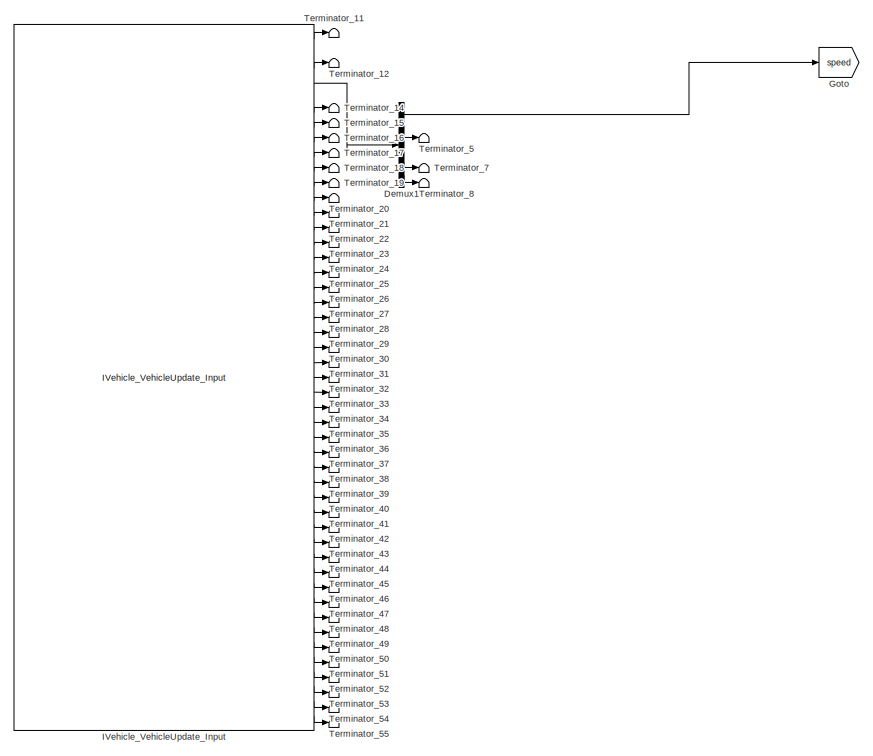
[diagram: root canvas - part 1/2, left side, full height]
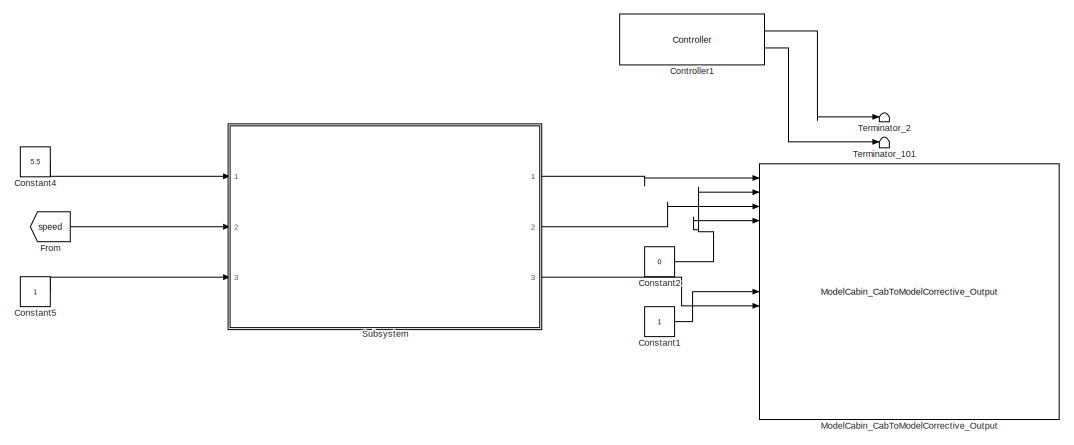
[diagram: root canvas - part 2/2, middle right region]
MODEL slx_c6527d155f93
KIND model
CONFIG AbsTol = auto
CONFIG EnableMultiTasking = off
CONFIG FixedStep = 0.01
CONFIG MaxStep = auto
CONFIG MinStep = auto
CONFIG RelTol = 1e-3
CONFIG SampleTimeConstraint = Unconstrained
CONFIG Solver = FixedStepAuto
CONFIG SolverName = FixedStepAuto
CONFIG StartTime = 0.0
CONFIG StopTime = inf
BLOCK [Constant] Constant1
BLOCK [Constant] Constant2
  Value = 0
BLOCK [Constant] Constant4
  Value = 5.5
BLOCK [Constant] Constant5
BLOCK [Reference] Controller1  REF=SCANeR_API/Controller
  Ports = [0, 2]
  Priority = 1
  SourceBlock = SCANeR_API/Controller
BLOCK [Demux] Demux1
  DisplayOption = bar
  Outputs = 6
  Ports = [1, 6]
BLOCK [From] From
  GotoTag = speed
BLOCK [Goto] Goto
  GotoTag = speed
BLOCK [Reference] IVehicle_VehicleUpdate_Input  REF=SCANeR_API/Network inputs/IVehicle/IVehicle_VehicleUpdate_Input
  Ports = [0, 47]
  Priority = 2
  SourceBlock = SCANeR_API/Network inputs/IVehicle/IVehicle_VehicleUpdate_Input
  SourceType = IVehicle_VehicleUpdate_Input
BLOCK [Reference] ModelCabin_CabToModelCorrective_Output  REF=SCANeR_API/SHM outputs/ModelCabin/ModelCabin_CabToModelCorrective_Output
  Ports = [17]
  Priority = 2
  SourceBlock = SCANeR_API/SHM outputs/ModelCabin/ModelCabin_CabToModelCorrective_Output
  SourceType = ModelCabin_CabToModelCorrective_Output
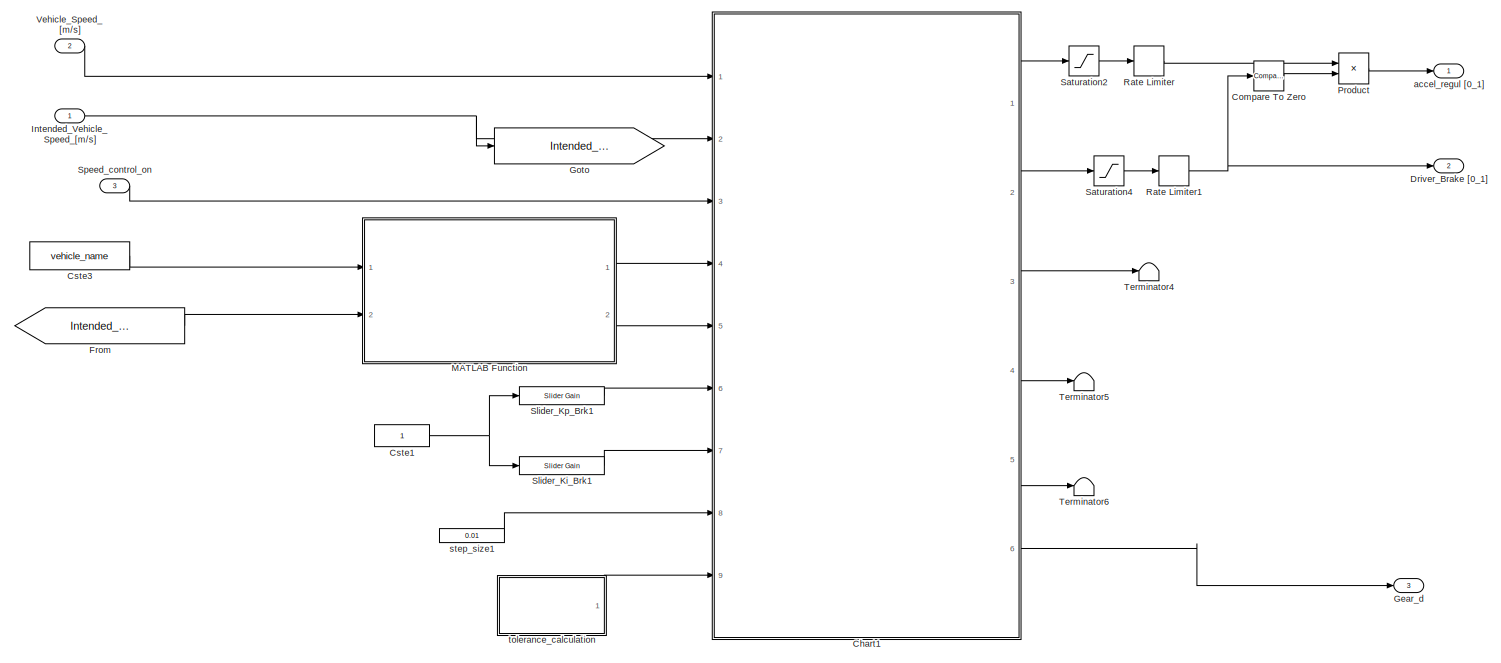
[diagram: Subsystem - part 1/2, most of the canvas]
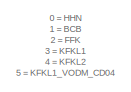
[diagram: Subsystem - part 2/2, bottom left region]
BLOCK [SubSystem] Subsystem
  Ports = [3, 3]
  RequestExecContextInheritance = off
  Variant = off
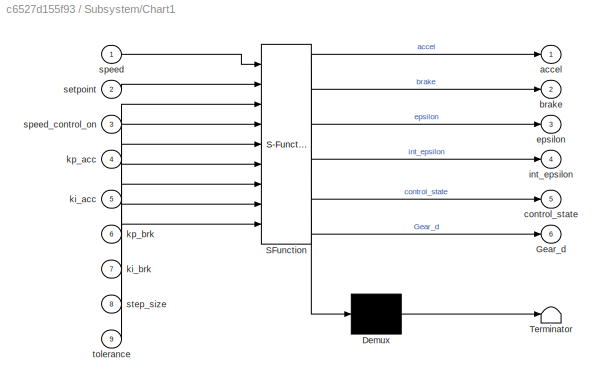
BLOCK [SubSystem] Subsystem/Chart1
  ErrorFcn = Stateflow.Translate.translate
  PermitHierarchicalResolution = ExplicitOnly
  Ports = [9, 6]
  RequestExecContextInheritance = off
  SFBlockType = Chart
  SystemSampleTime = 0.01
  TreatAsAtomicUnit = on
  Variant = off
BLOCK [Demux] Subsystem/Chart1/ Demux 
  Outputs = 1
  Ports = [1, 1]
BLOCK [S-Function] Subsystem/Chart1/ SFunction 
  EnableBusSupport = on
  FunctionName = sf_sfun
  PortCounts = [9 7]
  Ports = [9, 7]
  SFcnIsStateOwnerBlock = off
  SFunctionDeploymentMode = off
  Tag = Stateflow S-Function longi 5
BLOCK [Terminator] Subsystem/Chart1/ Terminator 
BLOCK [Outport] Subsystem/Chart1/Gear_d
  IconDisplay = Port number
  Port = 6
BLOCK [Outport] Subsystem/Chart1/accel
  IconDisplay = Port number
BLOCK [Outport] Subsystem/Chart1/brake
  IconDisplay = Port number
  Port = 2
BLOCK [Outport] Subsystem/Chart1/control_state
  IconDisplay = Port number
  Port = 5
BLOCK [Outport] Subsystem/Chart1/epsilon
  IconDisplay = Port number
  Port = 3
BLOCK [Outport] Subsystem/Chart1/int_epsilon
  IconDisplay = Port number
  Port = 4
BLOCK [Inport] Subsystem/Chart1/ki_acc
  IconDisplay = Port number
  Port = 5
BLOCK [Inport] Subsystem/Chart1/ki_brk
  IconDisplay = Port number
  Port = 7
BLOCK [Inport] Subsystem/Chart1/kp_acc
  IconDisplay = Port number
  Port = 4
BLOCK [Inport] Subsystem/Chart1/kp_brk
  IconDisplay = Port number
  Port = 6
BLOCK [Inport] Subsystem/Chart1/setpoint
  IconDisplay = Port number
  Port = 2
BLOCK [Inport] Subsystem/Chart1/speed
  IconDisplay = Port number
BLOCK [Inport] Subsystem/Chart1/speed_control_on
  IconDisplay = Port number
  Port = 3
BLOCK [Inport] Subsystem/Chart1/step_size
  IconDisplay = Port number
  Port = 8
BLOCK [Inport] Subsystem/Chart1/tolerance
  IconDisplay = Port number
  Port = 9
BLOCK [Reference] Subsystem/Compare To Zero  REF=simulink/Logic and Bit
Operations/Compare
To Zero
  Ports = [1, 1]
  SourceBlock = simulink/Logic and Bit\nOperations/Compare\nTo Zero
  SourceType = Compare To Zero
BLOCK [Constant] Subsystem/Cste1
  SampleTime = 0.01
BLOCK [Constant] Subsystem/Cste3
  SampleTime = 0.01
  Value = vehicle_name
BLOCK [Outport] Subsystem/Driver_Brake [0_1]
  IconDisplay = Port number
  Port = 2
BLOCK [From] Subsystem/From
  GotoTag = Intended_Vehicle_Speed_kmph
BLOCK [Outport] Subsystem/Gear_d
  IconDisplay = Port number
  Port = 3
BLOCK [Goto] Subsystem/Goto
  GotoTag = Intended_Vehicle_Speed_kmph
BLOCK [Inport] Subsystem/Intended_Vehicle_Speed_[m//s]
  IconDisplay = Port number
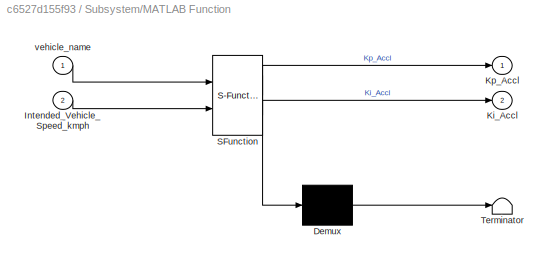
BLOCK [SubSystem] Subsystem/MATLAB Function
  ErrorFcn = Stateflow.Translate.translate
  PermitHierarchicalResolution = ExplicitOnly
  Ports = [2, 2]
  RequestExecContextInheritance = off
  SFBlockType = MATLAB Function
  TreatAsAtomicUnit = on
  Variant = off
BLOCK [Demux] Subsystem/MATLAB Function/ Demux 
  Outputs = 1
  Ports = [1, 1]
BLOCK [S-Function] Subsystem/MATLAB Function/ SFunction 
  EnableBusSupport = on
  FunctionName = sf_sfun
  PortCounts = [2 3]
  Ports = [2, 3]
  SFcnIsStateOwnerBlock = off
  SFunctionDeploymentMode = off
  Tag = Stateflow S-Function longi 6
BLOCK [Terminator] Subsystem/MATLAB Function/ Terminator 
BLOCK [Inport] Subsystem/MATLAB Function/Intended_Vehicle_Speed_kmph
  IconDisplay = Port number
  Port = 2
BLOCK [Outport] Subsystem/MATLAB Function/Ki_Accl
  IconDisplay = Port number
  Port = 2
BLOCK [Outport] Subsystem/MATLAB Function/Kp_Accl
  IconDisplay = Port number
BLOCK [Inport] Subsystem/MATLAB Function/vehicle_name
  IconDisplay = Port number
BLOCK [Product] Subsystem/Product
  InputSameDT = off
  OutDataTypeStr = Inherit: Inherit via internal rule
  Ports = [2, 1]
  RndMeth = Floor
  SaturateOnIntegerOverflow = off
BLOCK [RateLimiter] Subsystem/Rate Limiter
  RisingSlewLimit = 0.5
  SampleTimeMode = inherited
BLOCK [RateLimiter] Subsystem/Rate Limiter1
  RisingSlewLimit = 0.2
  SampleTimeMode = inherited
BLOCK [Saturate] Subsystem/Saturation2
  InputPortMap = u0
  LowerLimit = 0
  Ports = [1, 1]
  SampleTime = 0.01
  UpperLimit = 0.005
BLOCK [Saturate] Subsystem/Saturation4
  InputPortMap = u0
  LowerLimit = 0
  Ports = [1, 1]
  SampleTime = 0.01
  UpperLimit = 1
BLOCK [Reference] Subsystem/Slider_Ki_Brk1  REF=simulink/Math
Operations/Slider
Gain
  Ports = [1, 1]
  SourceBlock = simulink/Math\nOperations/Slider\nGain
  SourceType = Slider Gain
BLOCK [Reference] Subsystem/Slider_Kp_Brk1  REF=simulink/Math
Operations/Slider
Gain
  Ports = [1, 1]
  SourceBlock = simulink/Math\nOperations/Slider\nGain
  SourceType = Slider Gain
BLOCK [Inport] Subsystem/Speed_control_on
  IconDisplay = Port number
  Port = 3
BLOCK [Terminator] Subsystem/Terminator4
BLOCK [Terminator] Subsystem/Terminator5
BLOCK [Terminator] Subsystem/Terminator6
BLOCK [Inport] Subsystem/Vehicle_Speed_[m//s]
  IconDisplay = Port number
  Port = 2
BLOCK [Outport] Subsystem/accel_regul [0_1]
  IconDisplay = Port number
BLOCK [Constant] Subsystem/step_size1
  SampleTime = 0.01
  Value = 0.01
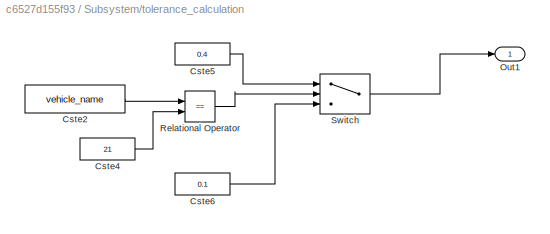
BLOCK [SubSystem] Subsystem/tolerance_calculation
  Ports = [0, 1]
  RequestExecContextInheritance = off
  Variant = off
BLOCK [Constant] Subsystem/tolerance_calculation/Cste2
  SampleTime = 0.01
  Value = vehicle_name
BLOCK [Constant] Subsystem/tolerance_calculation/Cste4
  SampleTime = 0.01
  Value = 21
BLOCK [Constant] Subsystem/tolerance_calculation/Cste5
  SampleTime = 0.01
  Value = 0.4
BLOCK [Constant] Subsystem/tolerance_calculation/Cste6
  SampleTime = 0.01
  Value = 0.1
BLOCK [Outport] Subsystem/tolerance_calculation/Out1
  IconDisplay = Port number
BLOCK [RelationalOperator] Subsystem/tolerance_calculation/Relational Operator
  InputSameDT = off
  Operator = ==
  OutDataTypeStr = boolean
  Ports = [2, 1]
  RndMeth = Simplest
BLOCK [Switch] Subsystem/tolerance_calculation/Switch
  Criteria = u2 > Threshold
  InputSameDT = off
  SaturateOnIntegerOverflow = off
  Threshold = 0.5
BLOCK [Terminator] Terminator_101
BLOCK [Terminator] Terminator_11
BLOCK [Terminator] Terminator_12
BLOCK [Terminator] Terminator_14
BLOCK [Terminator] Terminator_15
BLOCK [Terminator] Terminator_16
BLOCK [Terminator] Terminator_17
BLOCK [Terminator] Terminator_18
BLOCK [Terminator] Terminator_19
BLOCK [Terminator] Terminator_2
BLOCK [Terminator] Terminator_20
BLOCK [Terminator] Terminator_21
BLOCK [Terminator] Terminator_22
BLOCK [Terminator] Terminator_23
BLOCK [Terminator] Terminator_24
BLOCK [Terminator] Terminator_25
BLOCK [Terminator] Terminator_26
BLOCK [Terminator] Terminator_27
BLOCK [Terminator] Terminator_28
BLOCK [Terminator] Terminator_29
BLOCK [Terminator] Terminator_30
BLOCK [Terminator] Terminator_31
BLOCK [Terminator] Terminator_32
BLOCK [Terminator] Terminator_33
BLOCK [Terminator] Terminator_34
BLOCK [Terminator] Terminator_35
BLOCK [Terminator] Terminator_36
BLOCK [Terminator] Terminator_37
BLOCK [Terminator] Terminator_38
BLOCK [Terminator] Terminator_39
BLOCK [Terminator] Terminator_40
BLOCK [Terminator] Terminator_41
BLOCK [Terminator] Terminator_42
BLOCK [Terminator] Terminator_43
BLOCK [Terminator] Terminator_44
BLOCK [Terminator] Terminator_45
BLOCK [Terminator] Terminator_46
BLOCK [Terminator] Terminator_47
BLOCK [Terminator] Terminator_48
BLOCK [Terminator] Terminator_49
BLOCK [Terminator] Terminator_5
BLOCK [Terminator] Terminator_50
BLOCK [Terminator] Terminator_51
BLOCK [Terminator] Terminator_52
BLOCK [Terminator] Terminator_53
BLOCK [Terminator] Terminator_54
BLOCK [Terminator] Terminator_55
BLOCK [Terminator] Terminator_7
BLOCK [Terminator] Terminator_8
ANNOTATION Subsystem: 0 = HHN 1 = BCB 2 = FFK 3 = KFKL1 4 = KFKL2 5 = KFKL1_VODM_CD04 6= KFKL1_VODM_CD05 7 = KFKL1_VODM_CD06 8 = FFKL1_VODM_CD06 9 = FFKL1_MMAC_CD06 10 = FFKL2_MMAC_CD06 11 = KFKL2_MMAC_CD06 12 = XDD_35T_TRS_L2H2
LINE Constant1:1 -> ModelCabin_CabToModelCorrective_Output:9
NET Constant2:1 -> ModelCabin_CabToModelCorrective_Output:2, ModelCabin_CabToModelCorrective_Output:4
LINE Constant4:1 -> Subsystem:1
LINE Constant5:1 -> Subsystem:3
LINE Controller1:1 -> Terminator_2:1
LINE Controller1:2 -> Terminator_101:1
LINE Demux1:1 -> Goto:1
LINE Demux1:3 -> Terminator_5:1
LINE Demux1:5 -> Terminator_7:1
LINE Demux1:6 -> Terminator_8:1
LINE From:1 -> Subsystem:2
LINE IVehicle_VehicleUpdate_Input:1 -> Terminator_11:1
LINE IVehicle_VehicleUpdate_Input:10 -> Terminator_18:1
LINE IVehicle_VehicleUpdate_Input:11 -> Terminator_19:1
LINE IVehicle_VehicleUpdate_Input:12 -> Terminator_20:1
LINE IVehicle_VehicleUpdate_Input:13 -> Terminator_21:1
LINE IVehicle_VehicleUpdate_Input:14 -> Terminator_22:1
LINE IVehicle_VehicleUpdate_Input:15 -> Terminator_23:1
LINE IVehicle_VehicleUpdate_Input:16 -> Terminator_24:1
LINE IVehicle_VehicleUpdate_Input:17 -> Terminator_25:1
LINE IVehicle_VehicleUpdate_Input:18 -> Terminator_26:1
LINE IVehicle_VehicleUpdate_Input:19 -> Terminator_27:1
LINE IVehicle_VehicleUpdate_Input:20 -> Terminator_28:1
LINE IVehicle_VehicleUpdate_Input:21 -> Terminator_29:1
LINE IVehicle_VehicleUpdate_Input:22 -> Terminator_30:1
LINE IVehicle_VehicleUpdate_Input:23 -> Terminator_31:1
LINE IVehicle_VehicleUpdate_Input:24 -> Terminator_32:1
LINE IVehicle_VehicleUpdate_Input:25 -> Terminator_33:1
LINE IVehicle_VehicleUpdate_Input:26 -> Terminator_34:1
LINE IVehicle_VehicleUpdate_Input:27 -> Terminator_35:1
LINE IVehicle_VehicleUpdate_Input:28 -> Terminator_36:1
LINE IVehicle_VehicleUpdate_Input:29 -> Terminator_37:1
LINE IVehicle_VehicleUpdate_Input:3 -> Terminator_12:1
LINE IVehicle_VehicleUpdate_Input:30 -> Terminator_38:1
LINE IVehicle_VehicleUpdate_Input:31 -> Terminator_39:1
LINE IVehicle_VehicleUpdate_Input:32 -> Terminator_40:1
LINE IVehicle_VehicleUpdate_Input:33 -> Terminator_41:1
LINE IVehicle_VehicleUpdate_Input:34 -> Terminator_42:1
LINE IVehicle_VehicleUpdate_Input:35 -> Terminator_43:1
LINE IVehicle_VehicleUpdate_Input:36 -> Terminator_44:1
LINE IVehicle_VehicleUpdate_Input:37 -> Terminator_45:1
LINE IVehicle_VehicleUpdate_Input:38 -> Terminator_46:1
LINE IVehicle_VehicleUpdate_Input:39 -> Terminator_47:1
LINE IVehicle_VehicleUpdate_Input:4 -> Demux1:1
LINE IVehicle_VehicleUpdate_Input:40 -> Terminator_48:1
LINE IVehicle_VehicleUpdate_Input:41 -> Terminator_49:1
LINE IVehicle_VehicleUpdate_Input:42 -> Terminator_50:1
LINE IVehicle_VehicleUpdate_Input:43 -> Terminator_51:1
LINE IVehicle_VehicleUpdate_Input:44 -> Terminator_52:1
LINE IVehicle_VehicleUpdate_Input:45 -> Terminator_53:1
LINE IVehicle_VehicleUpdate_Input:46 -> Terminator_54:1
LINE IVehicle_VehicleUpdate_Input:47 -> Terminator_55:1
LINE IVehicle_VehicleUpdate_Input:6 -> Terminator_14:1
LINE IVehicle_VehicleUpdate_Input:7 -> Terminator_15:1
LINE IVehicle_VehicleUpdate_Input:8 -> Terminator_16:1
LINE IVehicle_VehicleUpdate_Input:9 -> Terminator_17:1
LINE Subsystem/Chart1:1 -> Subsystem/Saturation2:1
LINE Subsystem/Chart1:2 -> Subsystem/Saturation4:1
LINE Subsystem/Chart1:3 -> Subsystem/Terminator4:1
LINE Subsystem/Chart1:4 -> Subsystem/Terminator5:1
LINE Subsystem/Chart1:5 -> Subsystem/Terminator6:1
LINE Subsystem/Chart1:6 -> Subsystem/Gear_d:1
LINE Subsystem/Compare To Zero:1 -> Subsystem/Product:2
NET Subsystem/Cste1:1 -> Subsystem/Slider_Ki_Brk1:1, Subsystem/Slider_Kp_Brk1:1
LINE Subsystem/Cste3:1 -> Subsystem/MATLAB Function:1
LINE Subsystem/From:1 -> Subsystem/MATLAB Function:2
NET Subsystem/Intended_Vehicle_Speed_[m//s]:1 -> Subsystem/Chart1:2, Subsystem/Goto:1
LINE Subsystem/MATLAB Function:1 -> Subsystem/Chart1:4
LINE Subsystem/MATLAB Function:2 -> Subsystem/Chart1:5
LINE Subsystem/Product:1 -> Subsystem/accel_regul [0_1]:1
NET Subsystem/Rate Limiter1:1 -> Subsystem/Compare To Zero:1, Subsystem/Driver_Brake [0_1]:1
LINE Subsystem/Rate Limiter:1 -> Subsystem/Product:1
LINE Subsystem/Saturation2:1 -> Subsystem/Rate Limiter:1
LINE Subsystem/Saturation4:1 -> Subsystem/Rate Limiter1:1
LINE Subsystem/Slider_Ki_Brk1:1 -> Subsystem/Chart1:7
LINE Subsystem/Slider_Kp_Brk1:1 -> Subsystem/Chart1:6
LINE Subsystem/Speed_control_on:1 -> Subsystem/Chart1:3
LINE Subsystem/Vehicle_Speed_[m//s]:1 -> Subsystem/Chart1:1
LINE Subsystem/step_size1:1 -> Subsystem/Chart1:8
LINE Subsystem/tolerance_calculation/Cste2:1 -> Subsystem/tolerance_calculation/Relational Operator:1
LINE Subsystem/tolerance_calculation/Cste4:1 -> Subsystem/tolerance_calculation/Relational Operator:2
LINE Subsystem/tolerance_calculation/Cste5:1 -> Subsystem/tolerance_calculation/Switch:1
LINE Subsystem/tolerance_calculation/Cste6:1 -> Subsystem/tolerance_calculation/Switch:3
LINE Subsystem/tolerance_calculation/Relational Operator:1 -> Subsystem/tolerance_calculation/Switch:2
LINE Subsystem/tolerance_calculation/Switch:1 -> Subsystem/tolerance_calculation/Out1:1
LINE Subsystem/tolerance_calculation:1 -> Subsystem/Chart1:9
LINE Subsystem:1 -> ModelCabin_CabToModelCorrective_Output:1
LINE Subsystem:2 -> ModelCabin_CabToModelCorrective_Output:3
LINE Subsystem:3 -> ModelCabin_CabToModelCorrective_Output:10
note: NET lines group one-source signal fan-out (src -> all destinations, sorted); 1:1 wires keep LINE
CHART Subsystem/Chart1 states=9 transitions=35
  STATE_LABEL 'Speed_Control/'
  STATE_LABEL 'Control_Off/\naccel = 0;\nbrake = 0;\nint_epsilon = 0;\nGear=3;\n'
  STATE_LABEL 'Controller/\nlimit_accel = 1/kp_acc;\nlimit_brake = 1/kp_brk;'
  STATE_LABEL 'normal_regulation/\n'
  STATE_LABEL 'normal_accel/\ncontrol_state = 2;\naccel = -kp_acc*epsilon - ki_acc*int_epsilon;\nbrake = 0;\nGear_d = Gear;\n'
  STATE_LABEL 'normal_brake/\ncontrol_state = 1;\nbrake = kp_brk*epsilon + ki_brk*int_epsilon;\naccel = 0;\nGear_d = Gear;\n'
  STATE_LABEL '{Gear =10;}'
  STATE_LABEL '[epsilon <= tolerance]'
  STATE_LABEL '[abs(epsilon) < limit_accel & control_state == 2]\n{int_epsilon = int_epsilon + step_size*epsilon;}'
  STATE_LABEL '{int_epsilon = 0;}'
  STATE_LABEL '[abs(epsilon) < limit_brake & control_state == 1]\n{int_epsilon = int_epsilon + step_size*epsilon;}'
  STATE_LABEL '{int_epsilon = 0;}'
  STATE_LABEL 'reverse_regulation1/\n'
  STATE_LABEL 'normal_accel/\ncontrol_state = 2;\naccel = -kp_acc*epsilon - ki_acc*int_epsilon;\nbrake = 0;\nGear_d = Gear;\n'
  STATE_LABEL 'normal_brake/\ncontrol_state = 1;\nbrake = kp_brk*epsilon + ki_brk*int_epsilon;\naccel = 0;\nGear_d = Gear;\n'
  STATE_LABEL '{Gear =2;}'
  STATE_LABEL '[epsilon <=-0.1]'
  STATE_LABEL '[abs(epsilon) < limit_accel & control_state == 2]\n{int_epsilon = int_epsilon + step_size*epsilon;}'
  STATE_LABEL '{int_epsilon = 0;}'
  STATE_LABEL '[abs(epsilon) < limit_brake & control_state == 1]\n{int_epsilon = int_epsilon + step_size*epsilon;}'
  STATE_LABEL '{int_epsilon = 0;}'
  STATE_LABEL '[setpoint< 0]\n{epsilon =- speed+setpoint;}'
  STATE_LABEL '{epsilon = speed-setpoint;}\n'
  STATE_LABEL '{Gear =10;}'
  STATE_LABEL '{Gear =2;}'
  STATE_LABEL '{Gear =10;}'
  STATE_LABEL '{Gear =2;}'
  STATE_LABEL '[speed_control_on == 0]'
  STATE_LABEL '[speed_control_on == 0]'
  STATE_LABEL '{control_state = 0;}'
  STATE_LABEL 'Control_Off/\naccel = 0;\nbrake = 0;\nint_epsilon = 0;\nGear=3;\n'
  STATE_LABEL 'Controller/\nlimit_accel = 1/kp_acc;\nlimit_brake = 1/kp_brk;'
  STATE_LABEL 'normal_regulation/\n'
  STATE_LABEL 'normal_accel/\ncontrol_state = 2;\naccel = -kp_acc*epsilon - ki_acc*int_epsilon;\nbrake = 0;\nGear_d = Gear;\n'
  STATE_LABEL 'normal_brake/\ncontrol_state = 1;\nbrake = kp_brk*epsilon + ki_brk*int_epsilon;\naccel = 0;\nGear_d = Gear;\n'
  STATE_LABEL '{Gear =10;}'
  STATE_LABEL '[epsilon <= tolerance]'
  STATE_LABEL '[abs(epsilon) < limit_accel & control_state == 2]\n{int_epsilon = int_epsilon + step_size*epsilon;}'
  STATE_LABEL '{int_epsilon = 0;}'
  STATE_LABEL '[abs(epsilon) < limit_brake & control_state == 1]\n{int_epsilon = int_epsilon + step_size*epsilon;}'
CHART Subsystem/MATLAB Function states=1 transitions=1
  STATE_LABEL 'eML_blk_kernel()'
  STATE_LABEL 'SCRIPT:\nfunction [Kp_Accl, Ki_Accl]= fcn(vehicle_name,Intended_Vehicle_Speed_kmph)\n% This function calculates the Kp_Accl and Ki_Accl\n% Following are the vehicle models to be used for simulation\n% Vehicle_name:\n% 0 = HHN\n% 1 = BCB\n% 2 = FFK\n% 3 = KFKL1\n% 4 = KFKL2\n% 5 = KFKL1_VODM_CD04\n% 6= KFKL1_VODM_CD05\n% 7 = KFKL1_VODM_CD06\n% 8 = FFKL1_VODM_CD06\n% 9 = FFKL1_MMAC_CD06\n% 10 = FFKL2_MMAC_CD06\n% 1...<+2099ch>'
